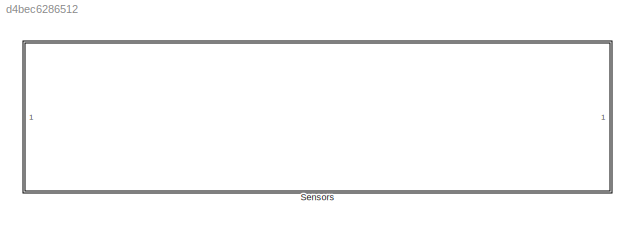
MODEL slx_d4bec6286512
KIND model
CONFIG AbsTol = auto
CONFIG EnableMultiTasking = off
CONFIG FixedStep = auto
CONFIG MaxStep = auto
CONFIG MinStep = auto
CONFIG RelTol = 1e-3
CONFIG SampleTimeConstraint = Unconstrained
CONFIG SolverName = FixedStepDiscrete
CONFIG StartTime = 0.0
CONFIG StopTime = 10.0
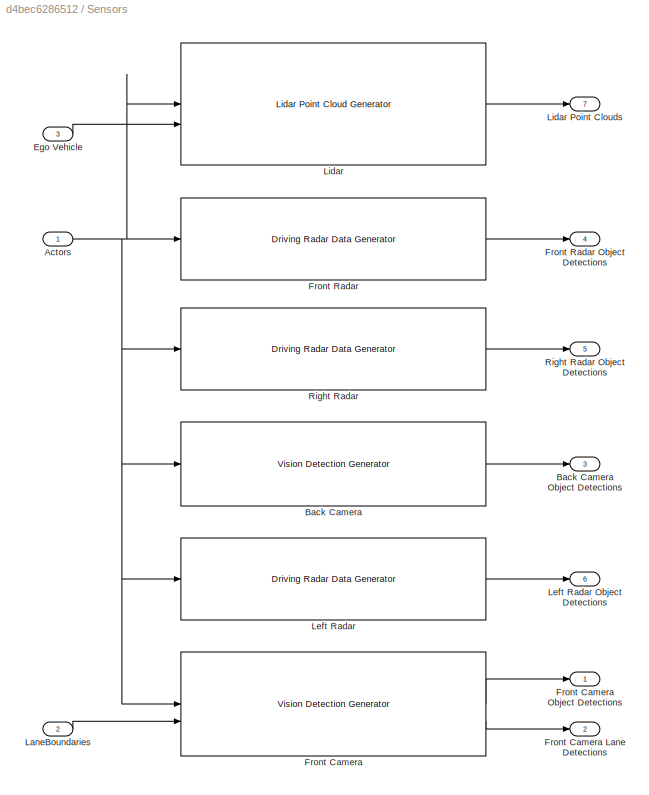
BLOCK [SubSystem] Sensors
BLOCK [Inport] Sensors/Actors
BLOCK [Reference] Sensors/Back Camera  REF=drivingscenarioandsensors/Vision Detection Generator
  SourceBlock = drivingscenarioandsensors/Vision Detection Generator
  SourceType = visionDetectionGenerator
BLOCK [Outport] Sensors/Back Camera Object Detections
  Port = 3
BLOCK [Inport] Sensors/Ego Vehicle
  Port = 3
BLOCK [Reference] Sensors/Front Camera  REF=drivingscenarioandsensors/Vision Detection Generator
  SourceBlock = drivingscenarioandsensors/Vision Detection Generator
  SourceType = visionDetectionGenerator
BLOCK [Outport] Sensors/Front Camera Lane Detections
  Port = 2
BLOCK [Outport] Sensors/Front Camera Object Detections
BLOCK [Reference] Sensors/Front Radar  REF=drivingscenarioandsensors/Driving Radar Data Generator
  SourceBlock = drivingscenarioandsensors/Driving Radar Data Generator
  SourceType = drivingRadarDataGenerator
BLOCK [Outport] Sensors/Front Radar Object Detections
  Port = 4
BLOCK [Inport] Sensors/LaneBoundaries
  Port = 2
BLOCK [Reference] Sensors/Left Radar  REF=drivingscenarioandsensors/Driving Radar Data Generator
  SourceBlock = drivingscenarioandsensors/Driving Radar Data Generator
  SourceType = drivingRadarDataGenerator
BLOCK [Outport] Sensors/Left Radar Object Detections
  Port = 6
BLOCK [Reference] Sensors/Lidar  REF=drivingscenarioandsensors/Lidar Point Cloud Generator
  SourceBlock = drivingscenarioandsensors/Lidar Point Cloud Generator
  SourceType = lidarPointCloudGenerator
BLOCK [Outport] Sensors/Lidar Point Clouds
  Port = 7
BLOCK [Reference] Sensors/Right Radar  REF=drivingscenarioandsensors/Driving Radar Data Generator
  SourceBlock = drivingscenarioandsensors/Driving Radar Data Generator
  SourceType = drivingRadarDataGenerator
BLOCK [Outport] Sensors/Right Radar Object Detections
  Port = 5
NET Sensors/Actors:1 -> Sensors/Back Camera:1, Sensors/Front Camera:1, Sensors/Front Radar:1, Sensors/Left Radar:1, Sensors/Lidar:1, Sensors/Right Radar:1
LINE Sensors/Back Camera:1 -> Sensors/Back Camera Object Detections:1
LINE Sensors/Ego Vehicle:1 -> Sensors/Lidar:2
LINE Sensors/Front Camera:1 -> Sensors/Front Camera Object Detections:1
LINE Sensors/Front Camera:2 -> Sensors/Front Camera Lane Detections:1
LINE Sensors/Front Radar:1 -> Sensors/Front Radar Object Detections:1
LINE Sensors/LaneBoundaries:1 -> Sensors/Front Camera:2
LINE Sensors/Left Radar:1 -> Sensors/Left Radar Object Detections:1
LINE Sensors/Lidar:1 -> Sensors/Lidar Point Clouds:1
LINE Sensors/Right Radar:1 -> Sensors/Right Radar Object Detections:1
note: NET lines group one-source signal fan-out (src -> all destinations, sorted); 1:1 wires keep LINE
